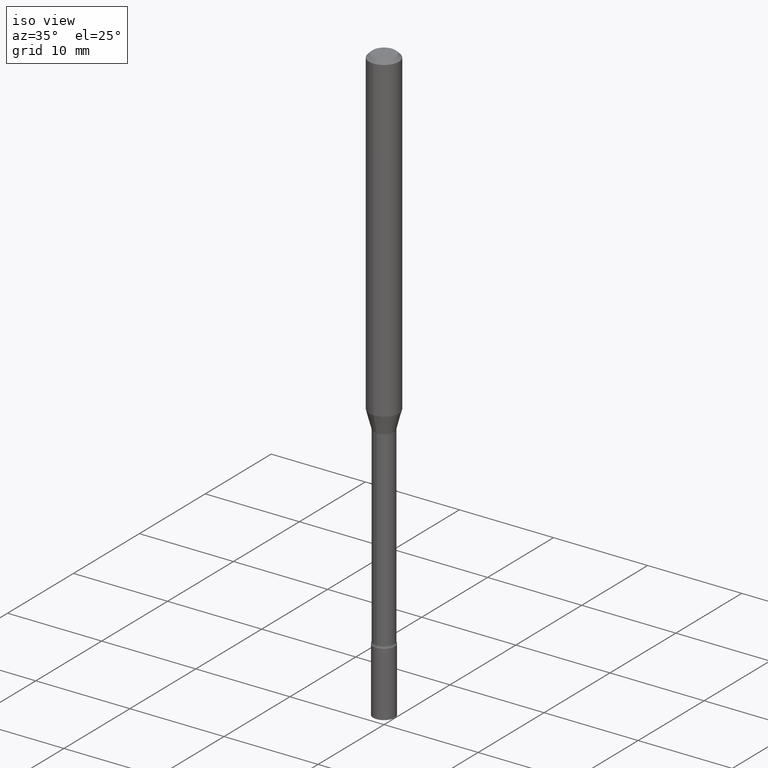
[diagram: clean part render]
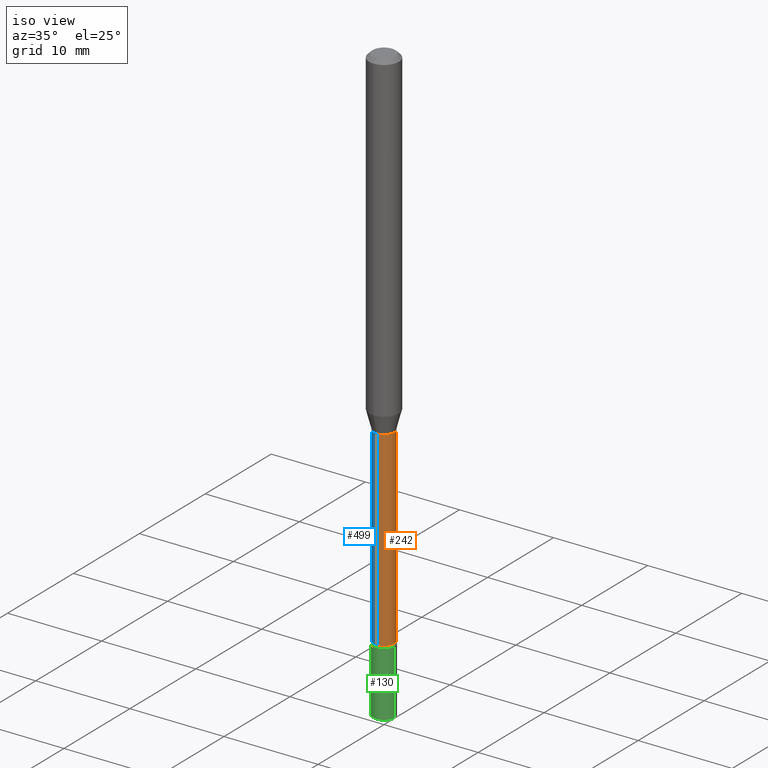
[diagram: same view with three faces highlighted in distinct colors, each labeled with its STEP entity id]
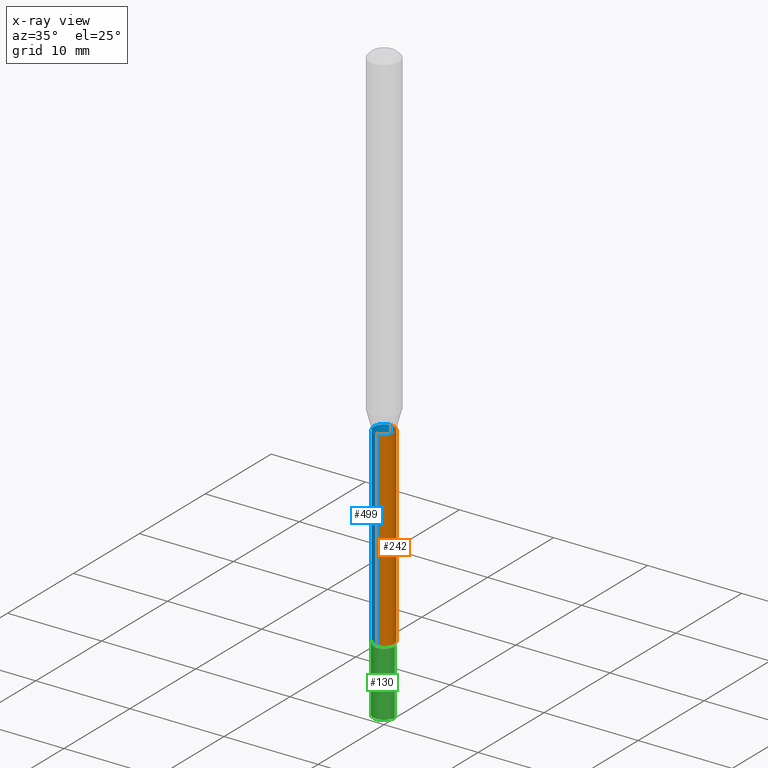
[diagram: x-ray of the same camera — body ghosted, the three highlighted faces saturated]
A machine part, iso view with three faces highlighted in distinct colors.
The next image is the same camera in x-ray (body ghosted, the three faces saturated) — at least one of them is partly hidden behind the body in this view.
Their STEP definitions:

[orange] entity #242 — the highlighted cylindrical surface (edge-blend (fillet) strip) has radius 1.0744 mm, axis along (-0, 0, 1).
#1 = ORIENTED_EDGE ( 'NONE', *, *, #317, .T. ) ;
#4 = VECTOR ( 'NONE', #292, 39.37007874015748143 ) ;
#24 = DIRECTION ( 'NONE',  ( -2.445482463285848698E-29, 3.491461781097612203E-15, 1.000000000000000000 ) ) ;
#30 = DIRECTION ( 'NONE',  ( -6.982962677686266711E-15, -1.000000000000000000, 6.458269488567998169E-15 ) ) ;
#40 = VERTEX_POINT ( 'NONE', #273 ) ;
#56 = CIRCLE ( 'NONE', #351, 0.04230000000000012222 ) ;
#69 = DIRECTION ( 'NONE',  ( -2.445482463285848698E-29, 3.491461781097612203E-15, 1.000000000000000000 ) ) ;
#71 = CIRCLE ( 'NONE', #437, 0.04229999999999999732 ) ;
#102 = FACE_OUTER_BOUND ( 'NONE', #459, .T. ) ;
#109 = CARTESIAN_POINT ( 'NONE',  ( 0.000000000000000000, 0.000000000000000000, 0.000000000000000000 ) ) ;
#110 = ORIENTED_EDGE ( 'NONE', *, *, #250, .F. ) ;
#137 = AXIS2_PLACEMENT_3D ( 'NONE', #109, #148, #277 ) ;
#148 = DIRECTION ( 'NONE',  ( -2.445482463285848698E-29, 3.491461781097612203E-15, 1.000000000000000000 ) ) ;
#166 = DIRECTION ( 'NONE',  ( -6.982962677686265922E-15, -1.000000000000000000, 6.458269488567979236E-15 ) ) ;
#172 = LINE ( 'NONE', #451, #4 ) ;
#179 = CARTESIAN_POINT ( 'NONE',  ( 3.005595772265769882E-16, 0.04229999999999502908, -1.421974787463811563 ) ) ;
#186 = CYLINDRICAL_SURFACE ( 'NONE', #137, 0.04230000000000005977 ) ;
#191 = LINE ( 'NONE', #265, #487 ) ;
#202 = ORIENTED_EDGE ( 'NONE', *, *, #331, .T. ) ;
#222 = CARTESIAN_POINT ( 'NONE',  ( -2.953793212660942943E-16, -0.04230000000000496557, -1.421974787463810896 ) ) ;
#242 = ADVANCED_FACE ( 'NONE', ( #102 ), #186, .T. ) ;
#250 = EDGE_CURVE ( 'NONE', #40, #387, #191, .T. ) ;
#265 = CARTESIAN_POINT ( 'NONE',  ( -2.953793212661294972E-16, -0.04230000000000005977, 1.476888333404292139E-16 ) ) ;
#267 = VERTEX_POINT ( 'NONE', #179 ) ;
#273 = CARTESIAN_POINT ( 'NONE',  ( -2.953793212660755588E-16, -0.04230000000000787991, -2.221414547187247290 ) ) ;
#277 = DIRECTION ( 'NONE',  ( -6.982962677686266711E-15, -1.000000000000000000, 3.491461781097612597E-15 ) ) ;
#292 = DIRECTION ( 'NONE',  ( -2.445482463285848698E-29, 3.491461781097612203E-15, 1.000000000000000000 ) ) ;
#317 = EDGE_CURVE ( 'NONE', #450, #267, #172, .T. ) ;
#331 = EDGE_CURVE ( 'NONE', #40, #450, #56, .T. ) ;
#351 = AXIS2_PLACEMENT_3D ( 'NONE', #449, #413, #166 ) ;
#387 = VERTEX_POINT ( 'NONE', #222 ) ;
#413 = DIRECTION ( 'NONE',  ( -2.445482463285848698E-29, 3.491461781097612203E-15, 1.000000000000000000 ) ) ;
#429 = ORIENTED_EDGE ( 'NONE', *, *, #436, .F. ) ;
#435 = CARTESIAN_POINT ( 'NONE',  ( 3.101519041593385169E-16, 0.04229999999999235760, -2.221414547187248179 ) ) ;
#436 = EDGE_CURVE ( 'NONE', #387, #267, #71, .T. ) ;
#437 = AXIS2_PLACEMENT_3D ( 'NONE', #443, #69, #30 ) ;
#443 = CARTESIAN_POINT ( 'NONE',  ( 3.477414405977372104E-29, -4.964770624114296457E-15, -1.421974787463811118 ) ) ;
#449 = CARTESIAN_POINT ( 'NONE',  ( 5.432430318834489549E-29, -7.755983991478533924E-15, -2.221414547187247734 ) ) ;
#450 = VERTEX_POINT ( 'NONE', #435 ) ;
#451 = CARTESIAN_POINT ( 'NONE',  ( 3.005595772265227540E-16, 0.04230000000000005977, -1.476888333404292139E-16 ) ) ;
#459 = EDGE_LOOP ( 'NONE', ( #202, #1, #429, #110 ) ) ;
#487 = VECTOR ( 'NONE', #24, 39.37007874015748143 ) ;

[blue] entity #499 — the highlighted cylindrical surface (edge-blend (fillet) strip) has radius 1.0744 mm, axis along (-0, 0, 1).
#4 = VECTOR ( 'NONE', #292, 39.37007874015748143 ) ;
#6 = CYLINDRICAL_SURFACE ( 'NONE', #480, 0.04230000000000005977 ) ;
#24 = DIRECTION ( 'NONE',  ( -2.445482463285848698E-29, 3.491461781097612203E-15, 1.000000000000000000 ) ) ;
#26 = CARTESIAN_POINT ( 'NONE',  ( 5.432430318834489549E-29, -7.755983991478533924E-15, -2.221414547187247734 ) ) ;
#36 = EDGE_CURVE ( 'NONE', #267, #387, #342, .T. ) ;
#40 = VERTEX_POINT ( 'NONE', #273 ) ;
#41 = CARTESIAN_POINT ( 'NONE',  ( 0.000000000000000000, 0.000000000000000000, 0.000000000000000000 ) ) ;
#43 = FACE_OUTER_BOUND ( 'NONE', #101, .T. ) ;
#68 = CIRCLE ( 'NONE', #218, 0.04230000000000012222 ) ;
#91 = EDGE_CURVE ( 'NONE', #450, #40, #68, .T. ) ;
#95 = DIRECTION ( 'NONE',  ( -6.982962677686265922E-15, -1.000000000000000000, 6.458269488567979236E-15 ) ) ;
#101 = EDGE_LOOP ( 'NONE', ( #124, #484, #394, #219 ) ) ;
#124 = ORIENTED_EDGE ( 'NONE', *, *, #317, .F. ) ;
#159 = DIRECTION ( 'NONE',  ( -2.445482463285848698E-29, 3.491461781097612203E-15, 1.000000000000000000 ) ) ;
#172 = LINE ( 'NONE', #451, #4 ) ;
#179 = CARTESIAN_POINT ( 'NONE',  ( 3.005595772265769882E-16, 0.04229999999999502908, -1.421974787463811563 ) ) ;
#183 = DIRECTION ( 'NONE',  ( -2.445482463285848698E-29, 3.491461781097612203E-15, 1.000000000000000000 ) ) ;
#191 = LINE ( 'NONE', #265, #487 ) ;
#218 = AXIS2_PLACEMENT_3D ( 'NONE', #26, #183, #95 ) ;
#219 = ORIENTED_EDGE ( 'NONE', *, *, #36, .F. ) ;
#222 = CARTESIAN_POINT ( 'NONE',  ( -2.953793212660942943E-16, -0.04230000000000496557, -1.421974787463810896 ) ) ;
#250 = EDGE_CURVE ( 'NONE', #40, #387, #191, .T. ) ;
#265 = CARTESIAN_POINT ( 'NONE',  ( -2.953793212661294972E-16, -0.04230000000000005977, 1.476888333404292139E-16 ) ) ;
#267 = VERTEX_POINT ( 'NONE', #179 ) ;
#273 = CARTESIAN_POINT ( 'NONE',  ( -2.953793212660755588E-16, -0.04230000000000787991, -2.221414547187247290 ) ) ;
#278 = CARTESIAN_POINT ( 'NONE',  ( 3.477414405977372104E-29, -4.964770624114296457E-15, -1.421974787463811118 ) ) ;
#292 = DIRECTION ( 'NONE',  ( -2.445482463285848698E-29, 3.491461781097612203E-15, 1.000000000000000000 ) ) ;
#317 = EDGE_CURVE ( 'NONE', #450, #267, #172, .T. ) ;
#318 = DIRECTION ( 'NONE',  ( -6.982962677686266711E-15, -1.000000000000000000, 6.458269488567998169E-15 ) ) ;
#342 = CIRCLE ( 'NONE', #513, 0.04229999999999999732 ) ;
#376 = DIRECTION ( 'NONE',  ( -6.982962677686266711E-15, -1.000000000000000000, 3.491461781097612597E-15 ) ) ;
#387 = VERTEX_POINT ( 'NONE', #222 ) ;
#394 = ORIENTED_EDGE ( 'NONE', *, *, #250, .T. ) ;
#435 = CARTESIAN_POINT ( 'NONE',  ( 3.101519041593385169E-16, 0.04229999999999235760, -2.221414547187248179 ) ) ;
#450 = VERTEX_POINT ( 'NONE', #435 ) ;
#451 = CARTESIAN_POINT ( 'NONE',  ( 3.005595772265227540E-16, 0.04230000000000005977, -1.476888333404292139E-16 ) ) ;
#467 = DIRECTION ( 'NONE',  ( -2.445482463285848698E-29, 3.491461781097612203E-15, 1.000000000000000000 ) ) ;
#480 = AXIS2_PLACEMENT_3D ( 'NONE', #41, #159, #376 ) ;
#484 = ORIENTED_EDGE ( 'NONE', *, *, #91, .T. ) ;
#487 = VECTOR ( 'NONE', #24, 39.37007874015748143 ) ;
#499 = ADVANCED_FACE ( 'NONE', ( #43 ), #6, .T. ) ;
#513 = AXIS2_PLACEMENT_3D ( 'NONE', #278, #467, #318 ) ;

[green] entity #130 — the highlighted cylindrical surface (edge-blend (fillet) strip) has radius 1.143 mm, axis along (-0, 0, 1).
#23 = EDGE_CURVE ( 'NONE', #290, #363, #511, .T. ) ;
#33 = CARTESIAN_POINT ( 'NONE',  ( -0.04499999999999999833, -7.937609135271993890E-15, -2.500000000000000000 ) ) ;
#48 = ORIENTED_EDGE ( 'NONE', *, *, #23, .T. ) ;
#64 = CARTESIAN_POINT ( 'NONE',  ( 5.453395437792854252E-29, -7.786003385620215150E-15, -2.229999999999999982 ) ) ;
#77 = DIRECTION ( 'NONE',  ( -2.445468806185136877E-29, 3.491481338843145188E-15, 1.000000000000000000 ) ) ;
#79 = EDGE_CURVE ( 'NONE', #477, #363, #444, .T. ) ;
#80 = CARTESIAN_POINT ( 'NONE',  ( 0.04499999999999999833, -8.100236706116096837E-15, -2.229999999999999982 ) ) ;
#106 = EDGE_LOOP ( 'NONE', ( #181, #473, #48, #141 ) ) ;
#130 = ADVANCED_FACE ( 'NONE', ( #146 ), #229, .T. ) ;
#141 = ORIENTED_EDGE ( 'NONE', *, *, #79, .F. ) ;
#143 = VECTOR ( 'NONE', #241, 39.37007874015748143 ) ;
#146 = FACE_OUTER_BOUND ( 'NONE', #106, .T. ) ;
#165 = CARTESIAN_POINT ( 'NONE',  ( -0.04499999999999999833, -7.937609135271993890E-15, -2.229999999999999982 ) ) ;
#167 = LINE ( 'NONE', #337, #306 ) ;
#176 = AXIS2_PLACEMENT_3D ( 'NONE', #305, #460, #341 ) ;
#181 = ORIENTED_EDGE ( 'NONE', *, *, #220, .F. ) ;
#209 = VERTEX_POINT ( 'NONE', #33 ) ;
#220 = EDGE_CURVE ( 'NONE', #209, #477, #167, .T. ) ;
#228 = DIRECTION ( 'NONE',  ( -2.445468806185136597E-29, 3.491481338843145583E-15, 1.000000000000000000 ) ) ;
#229 = CYLINDRICAL_SURFACE ( 'NONE', #281, 0.04499999999999999833 ) ;
#230 = DIRECTION ( 'NONE',  ( 1.000000000000000000, -6.982962677686269077E-15, 0.000000000000000000 ) ) ;
#233 = AXIS2_PLACEMENT_3D ( 'NONE', #64, #228, #230 ) ;
#237 = CARTESIAN_POINT ( 'NONE',  ( 0.04499999999999999833, -9.042936667603745051E-15, -2.500000000000000000 ) ) ;
#241 = DIRECTION ( 'NONE',  ( -2.445468806185136877E-29, 3.491481338843145188E-15, 1.000000000000000000 ) ) ;
#253 = DIRECTION ( 'NONE',  ( -2.445468806185136597E-29, 3.491481338843145583E-15, 1.000000000000000000 ) ) ;
#257 = CIRCLE ( 'NONE', #176, 0.04499999999999999833 ) ;
#281 = AXIS2_PLACEMENT_3D ( 'NONE', #428, #253, #488 ) ;
#290 = VERTEX_POINT ( 'NONE', #237 ) ;
#305 = CARTESIAN_POINT ( 'NONE',  ( 6.113672015462842613E-29, -8.728703347107864943E-15, -2.500000000000000000 ) ) ;
#306 = VECTOR ( 'NONE', #77, 39.37007874015748143 ) ;
#337 = CARTESIAN_POINT ( 'NONE',  ( -0.04499999999999999833, 3.197442310920450718E-16, -2.213520790614707560E-30 ) ) ;
#341 = DIRECTION ( 'NONE',  ( 1.000000000000000000, -6.982962677686246989E-15, 0.000000000000000000 ) ) ;
#363 = VERTEX_POINT ( 'NONE', #80 ) ;
#371 = EDGE_CURVE ( 'NONE', #209, #290, #257, .T. ) ;
#428 = CARTESIAN_POINT ( 'NONE',  ( 0.000000000000000000, 0.000000000000000000, 0.000000000000000000 ) ) ;
#444 = CIRCLE ( 'NONE', #233, 0.04499999999999999833 ) ;
#460 = DIRECTION ( 'NONE',  ( -2.445468806185136597E-29, 3.491481338843145583E-15, 1.000000000000000000 ) ) ;
#473 = ORIENTED_EDGE ( 'NONE', *, *, #371, .T. ) ;
#477 = VERTEX_POINT ( 'NONE', #165 ) ;
#488 = DIRECTION ( 'NONE',  ( 1.000000000000000000, -6.982962677686266711E-15, 4.876176775795935793E-29 ) ) ;
#509 = CARTESIAN_POINT ( 'NONE',  ( 0.04499999999999999833, -3.142333204958819823E-16, 2.194279549108170967E-30 ) ) ;
#511 = LINE ( 'NONE', #509, #143 ) ;